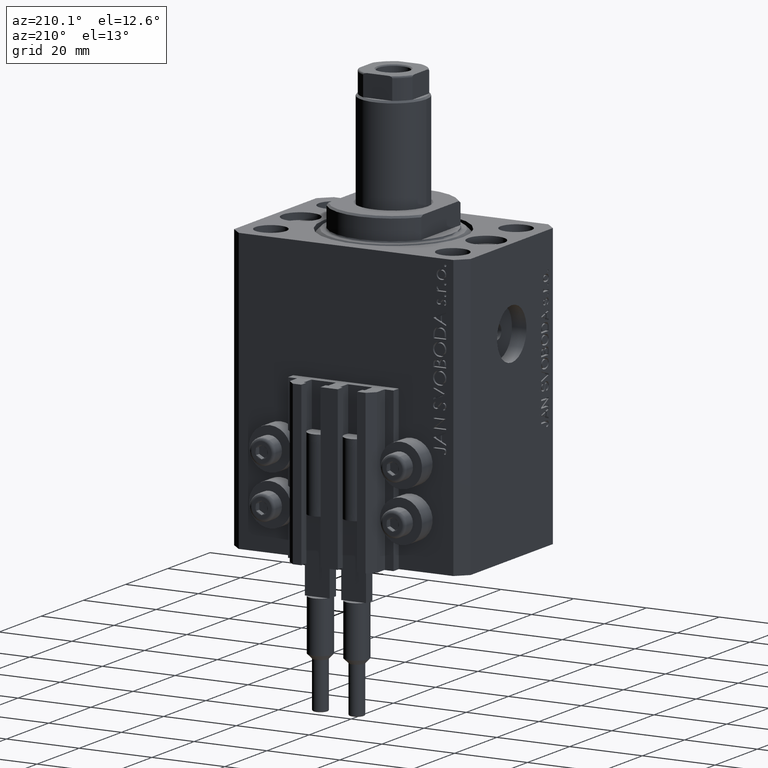
[diagram: clean part render]
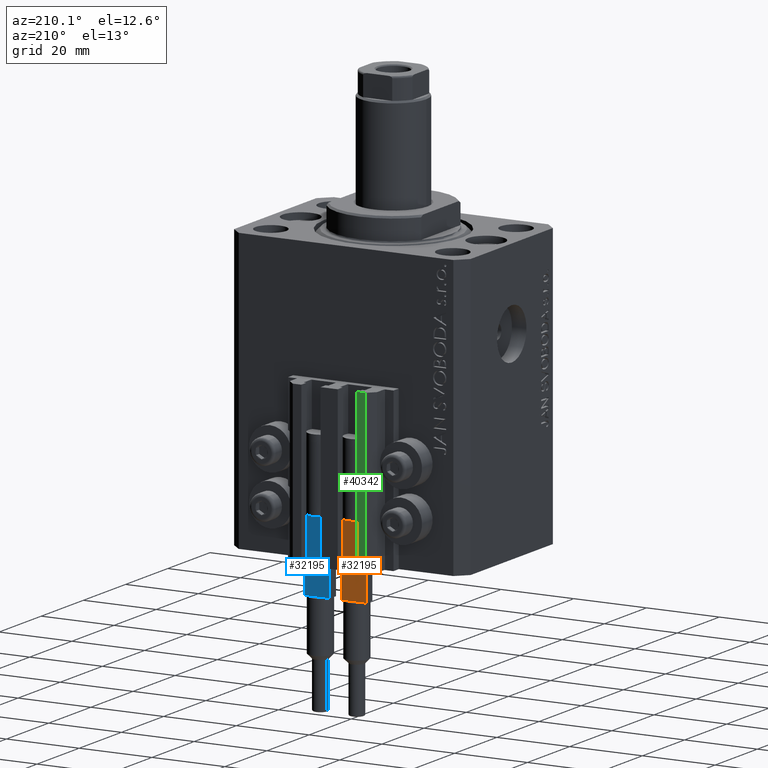
[diagram: same view with three faces highlighted in distinct colors, each labeled with its STEP entity id]
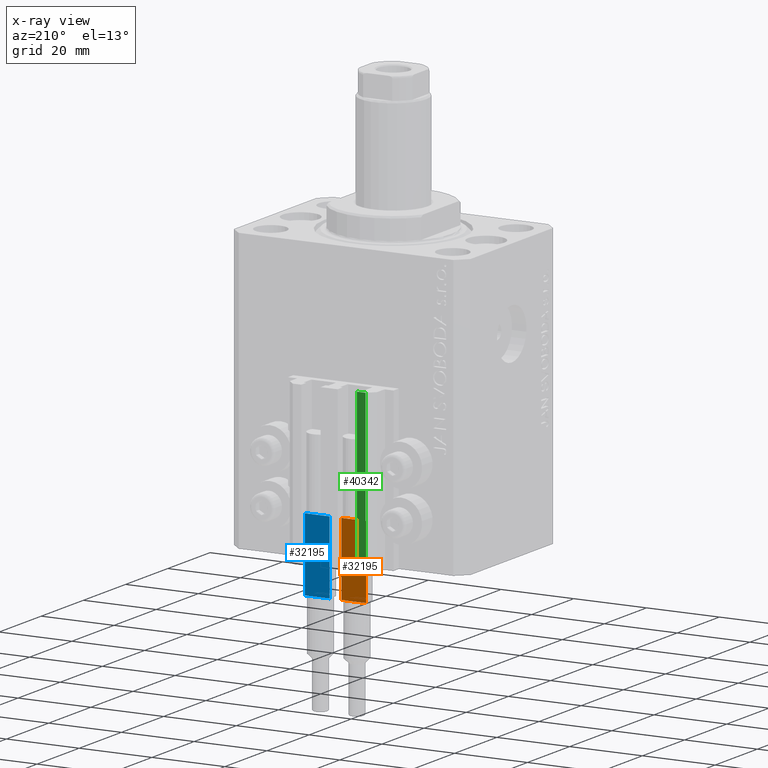
[diagram: x-ray of the same camera — body ghosted, the three highlighted faces saturated]
A machine part, auxiliary view with three faces highlighted in distinct colors.
The next image is the same camera in x-ray (body ghosted, the three faces saturated) — at least one of them is partly hidden behind the body in this view.
Their STEP definitions:

[orange] entity #32195 — the highlighted planar face has unit normal (0, -1, -0).
#1792 = DIRECTION ( 'NONE',  ( -0.000000000000000000, -0.000000000000000000, -1.000000000000000000 ) ) ;
#2443 = LINE ( 'NONE', #17226, #40698 ) ;
#2501 = FACE_OUTER_BOUND ( 'NONE', #45176, .T. ) ;
#5296 = ORIENTED_EDGE ( 'NONE', *, *, #25158, .F. ) ;
#5676 = DIRECTION ( 'NONE',  ( 0.000000000000000000, -0.000000000000000000, 1.000000000000000000 ) ) ;
#5892 = VERTEX_POINT ( 'NONE', #27690 ) ;
#7401 = AXIS2_PLACEMENT_3D ( 'NONE', #24801, #38623, #5676 ) ;
#7646 = CARTESIAN_POINT ( 'NONE',  ( 3.051229260478471428, -1.500000000000000000, 20.00000000000000000 ) ) ;
#7902 = ORIENTED_EDGE ( 'NONE', *, *, #14832, .F. ) ;
#10071 = VECTOR ( 'NONE', #43062, 1000.000000000000000 ) ;
#10503 = VERTEX_POINT ( 'NONE', #26639 ) ;
#11006 = VECTOR ( 'NONE', #39461, 1000.000000000000000 ) ;
#12671 = CARTESIAN_POINT ( 'NONE',  ( -2.883140648667699146, -1.500000000000000000, 40.00000000000000000 ) ) ;
#13522 = DIRECTION ( 'NONE',  ( 1.000000000000000000, 0.000000000000000000, 0.000000000000000000 ) ) ;
#14648 = VERTEX_POINT ( 'NONE', #12671 ) ;
#14832 = EDGE_CURVE ( 'NONE', #10503, #14648, #25385, .T. ) ;
#14858 = LINE ( 'NONE', #21433, #32774 ) ;
#14938 = EDGE_CURVE ( 'NONE', #35306, #20137, #25143, .T. ) ;
#15711 = ORIENTED_EDGE ( 'NONE', *, *, #46025, .F. ) ;
#17226 = CARTESIAN_POINT ( 'NONE',  ( -3.399999999999999467, -1.500000000000000000, 20.00000000000000000 ) ) ;
#17400 = CARTESIAN_POINT ( 'NONE',  ( -3.399999999999999467, -1.500000000000000000, 40.00000000000000000 ) ) ;
#17502 = ORIENTED_EDGE ( 'NONE', *, *, #33580, .T. ) ;
#17526 = CARTESIAN_POINT ( 'NONE',  ( 3.400000000000000355, -1.500000000000000000, 20.00000000000000000 ) ) ;
#19907 = ORIENTED_EDGE ( 'NONE', *, *, #44026, .T. ) ;
#20137 = VERTEX_POINT ( 'NONE', #7646 ) ;
#20450 = PLANE ( 'NONE',  #7401 ) ;
#21433 = CARTESIAN_POINT ( 'NONE',  ( 3.400000000000000355, -1.500000000000000000, 40.00000000000000000 ) ) ;
#22281 = VECTOR ( 'NONE', #35074, 1000.000000000000000 ) ;
#24681 = CARTESIAN_POINT ( 'NONE',  ( -3.399999999999999467, -1.500000000000000000, 20.00000000000000000 ) ) ;
#24801 = CARTESIAN_POINT ( 'NONE',  ( -3.399999999999999467, -1.500000000000000000, 40.00000000000000000 ) ) ;
#25143 = LINE ( 'NONE', #24681, #11006 ) ;
#25158 = EDGE_CURVE ( 'NONE', #5892, #32148, #14858, .T. ) ;
#25385 = LINE ( 'NONE', #17400, #28014 ) ;
#25751 = CARTESIAN_POINT ( 'NONE',  ( -3.399999999999999467, -1.500000000000000000, 20.00000000000000000 ) ) ;
#25962 = VERTEX_POINT ( 'NONE', #35071 ) ;
#26071 = CARTESIAN_POINT ( 'NONE',  ( -3.399999999999999467, -1.500000000000000000, 40.00000000000000000 ) ) ;
#26639 = CARTESIAN_POINT ( 'NONE',  ( -3.399999999999999467, -1.500000000000000000, 40.00000000000000000 ) ) ;
#26750 = VECTOR ( 'NONE', #1792, 1000.000000000000000 ) ;
#27074 = CARTESIAN_POINT ( 'NONE',  ( -3.051229260478471428, -1.500000000000000000, 20.00000000000000000 ) ) ;
#27088 = LINE ( 'NONE', #38956, #22281 ) ;
#27233 = ORIENTED_EDGE ( 'NONE', *, *, #32692, .T. ) ;
#27500 = CARTESIAN_POINT ( 'NONE',  ( -3.399999999999999467, -1.500000000000000000, 20.00000000000000000 ) ) ;
#27690 = CARTESIAN_POINT ( 'NONE',  ( 3.400000000000000355, -1.500000000000000000, 40.00000000000000000 ) ) ;
#28014 = VECTOR ( 'NONE', #13522, 1000.000000000000000 ) ;
#29397 = LINE ( 'NONE', #25751, #10071 ) ;
#29940 = DIRECTION ( 'NONE',  ( 1.000000000000000000, 0.000000000000000000, 0.000000000000000000 ) ) ;
#30984 = VECTOR ( 'NONE', #29940, 1000.000000000000000 ) ;
#31280 = DIRECTION ( 'NONE',  ( 1.000000000000000000, 0.000000000000000000, 0.000000000000000000 ) ) ;
#31348 = CARTESIAN_POINT ( 'NONE',  ( -3.399999999999999467, -1.500000000000000000, 40.00000000000000000 ) ) ;
#32148 = VERTEX_POINT ( 'NONE', #17526 ) ;
#32195 = ADVANCED_FACE ( 'NONE', ( #2501 ), #20450, .F. ) ;
#32308 = DIRECTION ( 'NONE',  ( -0.000000000000000000, -0.000000000000000000, -1.000000000000000000 ) ) ;
#32692 = EDGE_CURVE ( 'NONE', #20137, #32148, #2443, .T. ) ;
#32774 = VECTOR ( 'NONE', #32308, 1000.000000000000000 ) ;
#33580 = EDGE_CURVE ( 'NONE', #10503, #46058, #41554, .T. ) ;
#34522 = LINE ( 'NONE', #26071, #30984 ) ;
#35071 = CARTESIAN_POINT ( 'NONE',  ( 2.883140648667699146, -1.500000000000000000, 40.00000000000000000 ) ) ;
#35074 = DIRECTION ( 'NONE',  ( 1.000000000000000000, 0.000000000000000000, 0.000000000000000000 ) ) ;
#35306 = VERTEX_POINT ( 'NONE', #27074 ) ;
#38474 = EDGE_CURVE ( 'NONE', #25962, #5892, #27088, .T. ) ;
#38623 = DIRECTION ( 'NONE',  ( 0.000000000000000000, 1.000000000000000000, 0.000000000000000000 ) ) ;
#38956 = CARTESIAN_POINT ( 'NONE',  ( -3.399999999999999467, -1.500000000000000000, 40.00000000000000000 ) ) ;
#39461 = DIRECTION ( 'NONE',  ( 1.000000000000000000, 0.000000000000000000, 0.000000000000000000 ) ) ;
#40582 = ORIENTED_EDGE ( 'NONE', *, *, #14938, .T. ) ;
#40698 = VECTOR ( 'NONE', #31280, 1000.000000000000000 ) ;
#41554 = LINE ( 'NONE', #31348, #26750 ) ;
#43062 = DIRECTION ( 'NONE',  ( 1.000000000000000000, 0.000000000000000000, 0.000000000000000000 ) ) ;
#44026 = EDGE_CURVE ( 'NONE', #46058, #35306, #29397, .T. ) ;
#45176 = EDGE_LOOP ( 'NONE', ( #19907, #40582, #27233, #5296, #45835, #15711, #7902, #17502 ) ) ;
#45835 = ORIENTED_EDGE ( 'NONE', *, *, #38474, .F. ) ;
#46025 = EDGE_CURVE ( 'NONE', #14648, #25962, #34522, .T. ) ;
#46058 = VERTEX_POINT ( 'NONE', #27500 ) ;

[blue] entity #32195 — the highlighted planar face has unit normal (0, -1, -0).
#1792 = DIRECTION ( 'NONE',  ( -0.000000000000000000, -0.000000000000000000, -1.000000000000000000 ) ) ;
#2443 = LINE ( 'NONE', #17226, #40698 ) ;
#2501 = FACE_OUTER_BOUND ( 'NONE', #45176, .T. ) ;
#5296 = ORIENTED_EDGE ( 'NONE', *, *, #25158, .F. ) ;
#5676 = DIRECTION ( 'NONE',  ( 0.000000000000000000, -0.000000000000000000, 1.000000000000000000 ) ) ;
#5892 = VERTEX_POINT ( 'NONE', #27690 ) ;
#7401 = AXIS2_PLACEMENT_3D ( 'NONE', #24801, #38623, #5676 ) ;
#7646 = CARTESIAN_POINT ( 'NONE',  ( 3.051229260478471428, -1.500000000000000000, 20.00000000000000000 ) ) ;
#7902 = ORIENTED_EDGE ( 'NONE', *, *, #14832, .F. ) ;
#10071 = VECTOR ( 'NONE', #43062, 1000.000000000000000 ) ;
#10503 = VERTEX_POINT ( 'NONE', #26639 ) ;
#11006 = VECTOR ( 'NONE', #39461, 1000.000000000000000 ) ;
#12671 = CARTESIAN_POINT ( 'NONE',  ( -2.883140648667699146, -1.500000000000000000, 40.00000000000000000 ) ) ;
#13522 = DIRECTION ( 'NONE',  ( 1.000000000000000000, 0.000000000000000000, 0.000000000000000000 ) ) ;
#14648 = VERTEX_POINT ( 'NONE', #12671 ) ;
#14832 = EDGE_CURVE ( 'NONE', #10503, #14648, #25385, .T. ) ;
#14858 = LINE ( 'NONE', #21433, #32774 ) ;
#14938 = EDGE_CURVE ( 'NONE', #35306, #20137, #25143, .T. ) ;
#15711 = ORIENTED_EDGE ( 'NONE', *, *, #46025, .F. ) ;
#17226 = CARTESIAN_POINT ( 'NONE',  ( -3.399999999999999467, -1.500000000000000000, 20.00000000000000000 ) ) ;
#17400 = CARTESIAN_POINT ( 'NONE',  ( -3.399999999999999467, -1.500000000000000000, 40.00000000000000000 ) ) ;
#17502 = ORIENTED_EDGE ( 'NONE', *, *, #33580, .T. ) ;
#17526 = CARTESIAN_POINT ( 'NONE',  ( 3.400000000000000355, -1.500000000000000000, 20.00000000000000000 ) ) ;
#19907 = ORIENTED_EDGE ( 'NONE', *, *, #44026, .T. ) ;
#20137 = VERTEX_POINT ( 'NONE', #7646 ) ;
#20450 = PLANE ( 'NONE',  #7401 ) ;
#21433 = CARTESIAN_POINT ( 'NONE',  ( 3.400000000000000355, -1.500000000000000000, 40.00000000000000000 ) ) ;
#22281 = VECTOR ( 'NONE', #35074, 1000.000000000000000 ) ;
#24681 = CARTESIAN_POINT ( 'NONE',  ( -3.399999999999999467, -1.500000000000000000, 20.00000000000000000 ) ) ;
#24801 = CARTESIAN_POINT ( 'NONE',  ( -3.399999999999999467, -1.500000000000000000, 40.00000000000000000 ) ) ;
#25143 = LINE ( 'NONE', #24681, #11006 ) ;
#25158 = EDGE_CURVE ( 'NONE', #5892, #32148, #14858, .T. ) ;
#25385 = LINE ( 'NONE', #17400, #28014 ) ;
#25751 = CARTESIAN_POINT ( 'NONE',  ( -3.399999999999999467, -1.500000000000000000, 20.00000000000000000 ) ) ;
#25962 = VERTEX_POINT ( 'NONE', #35071 ) ;
#26071 = CARTESIAN_POINT ( 'NONE',  ( -3.399999999999999467, -1.500000000000000000, 40.00000000000000000 ) ) ;
#26639 = CARTESIAN_POINT ( 'NONE',  ( -3.399999999999999467, -1.500000000000000000, 40.00000000000000000 ) ) ;
#26750 = VECTOR ( 'NONE', #1792, 1000.000000000000000 ) ;
#27074 = CARTESIAN_POINT ( 'NONE',  ( -3.051229260478471428, -1.500000000000000000, 20.00000000000000000 ) ) ;
#27088 = LINE ( 'NONE', #38956, #22281 ) ;
#27233 = ORIENTED_EDGE ( 'NONE', *, *, #32692, .T. ) ;
#27500 = CARTESIAN_POINT ( 'NONE',  ( -3.399999999999999467, -1.500000000000000000, 20.00000000000000000 ) ) ;
#27690 = CARTESIAN_POINT ( 'NONE',  ( 3.400000000000000355, -1.500000000000000000, 40.00000000000000000 ) ) ;
#28014 = VECTOR ( 'NONE', #13522, 1000.000000000000000 ) ;
#29397 = LINE ( 'NONE', #25751, #10071 ) ;
#29940 = DIRECTION ( 'NONE',  ( 1.000000000000000000, 0.000000000000000000, 0.000000000000000000 ) ) ;
#30984 = VECTOR ( 'NONE', #29940, 1000.000000000000000 ) ;
#31280 = DIRECTION ( 'NONE',  ( 1.000000000000000000, 0.000000000000000000, 0.000000000000000000 ) ) ;
#31348 = CARTESIAN_POINT ( 'NONE',  ( -3.399999999999999467, -1.500000000000000000, 40.00000000000000000 ) ) ;
#32148 = VERTEX_POINT ( 'NONE', #17526 ) ;
#32195 = ADVANCED_FACE ( 'NONE', ( #2501 ), #20450, .F. ) ;
#32308 = DIRECTION ( 'NONE',  ( -0.000000000000000000, -0.000000000000000000, -1.000000000000000000 ) ) ;
#32692 = EDGE_CURVE ( 'NONE', #20137, #32148, #2443, .T. ) ;
#32774 = VECTOR ( 'NONE', #32308, 1000.000000000000000 ) ;
#33580 = EDGE_CURVE ( 'NONE', #10503, #46058, #41554, .T. ) ;
#34522 = LINE ( 'NONE', #26071, #30984 ) ;
#35071 = CARTESIAN_POINT ( 'NONE',  ( 2.883140648667699146, -1.500000000000000000, 40.00000000000000000 ) ) ;
#35074 = DIRECTION ( 'NONE',  ( 1.000000000000000000, 0.000000000000000000, 0.000000000000000000 ) ) ;
#35306 = VERTEX_POINT ( 'NONE', #27074 ) ;
#38474 = EDGE_CURVE ( 'NONE', #25962, #5892, #27088, .T. ) ;
#38623 = DIRECTION ( 'NONE',  ( 0.000000000000000000, 1.000000000000000000, 0.000000000000000000 ) ) ;
#38956 = CARTESIAN_POINT ( 'NONE',  ( -3.399999999999999467, -1.500000000000000000, 40.00000000000000000 ) ) ;
#39461 = DIRECTION ( 'NONE',  ( 1.000000000000000000, 0.000000000000000000, 0.000000000000000000 ) ) ;
#40582 = ORIENTED_EDGE ( 'NONE', *, *, #14938, .T. ) ;
#40698 = VECTOR ( 'NONE', #31280, 1000.000000000000000 ) ;
#41554 = LINE ( 'NONE', #31348, #26750 ) ;
#43062 = DIRECTION ( 'NONE',  ( 1.000000000000000000, 0.000000000000000000, 0.000000000000000000 ) ) ;
#44026 = EDGE_CURVE ( 'NONE', #46058, #35306, #29397, .T. ) ;
#45176 = EDGE_LOOP ( 'NONE', ( #19907, #40582, #27233, #5296, #45835, #15711, #7902, #17502 ) ) ;
#45835 = ORIENTED_EDGE ( 'NONE', *, *, #38474, .F. ) ;
#46025 = EDGE_CURVE ( 'NONE', #14648, #25962, #34522, .T. ) ;
#46058 = VERTEX_POINT ( 'NONE', #27500 ) ;

[green] entity #40342 — the highlighted planar face has unit normal (0, 1, 0).
#1831 = VERTEX_POINT ( 'NONE', #24285 ) ;
#2731 = VECTOR ( 'NONE', #9202, 1000.000000000000000 ) ;
#3314 = ORIENTED_EDGE ( 'NONE', *, *, #43411, .F. ) ;
#3323 = PLANE ( 'NONE',  #20035 ) ;
#7145 = EDGE_LOOP ( 'NONE', ( #3314, #43830, #26808, #33439 ) ) ;
#9202 = DIRECTION ( 'NONE',  ( 0.000000000000000000, 0.000000000000000000, 1.000000000000000000 ) ) ;
#9338 = CARTESIAN_POINT ( 'NONE',  ( -7.650000000000000355, 30.49999999999948486, -33.00000000000000000 ) ) ;
#9676 = CARTESIAN_POINT ( 'NONE',  ( -7.650000000000000355, 30.49999999999948486, -77.00000000000000000 ) ) ;
#10127 = DIRECTION ( 'NONE',  ( 1.476360405086644852E-15, 1.000000000000000000, -0.000000000000000000 ) ) ;
#12507 = EDGE_CURVE ( 'NONE', #32067, #16645, #24221, .T. ) ;
#12567 = EDGE_CURVE ( 'NONE', #31870, #1831, #16954, .T. ) ;
#13921 = DIRECTION ( 'NONE',  ( -1.000000000000000000, 1.476360405086644852E-15, 0.000000000000000000 ) ) ;
#16093 = CARTESIAN_POINT ( 'NONE',  ( -10.00000000000000000, 30.49999999999948841, -77.00000000000000000 ) ) ;
#16645 = VERTEX_POINT ( 'NONE', #45130 ) ;
#16954 = LINE ( 'NONE', #27363, #39894 ) ;
#20035 = AXIS2_PLACEMENT_3D ( 'NONE', #29010, #10127, #40182 ) ;
#24221 = LINE ( 'NONE', #42415, #2731 ) ;
#24285 = CARTESIAN_POINT ( 'NONE',  ( -7.650000000000000355, 30.49999999999948486, -33.00000000000000000 ) ) ;
#24381 = CARTESIAN_POINT ( 'NONE',  ( -7.650000000000000355, 30.49999999999948486, -77.00000000000000000 ) ) ;
#24736 = VECTOR ( 'NONE', #13921, 1000.000000000000000 ) ;
#26043 = VECTOR ( 'NONE', #31717, 1000.000000000000000 ) ;
#26808 = ORIENTED_EDGE ( 'NONE', *, *, #35161, .T. ) ;
#27363 = CARTESIAN_POINT ( 'NONE',  ( -7.650000000000000355, 30.49999999999948486, -77.00000000000000000 ) ) ;
#27607 = LINE ( 'NONE', #9676, #26043 ) ;
#29010 = CARTESIAN_POINT ( 'NONE',  ( -7.650000000000000355, 30.49999999999948486, -77.00000000000000000 ) ) ;
#31717 = DIRECTION ( 'NONE',  ( -1.000000000000000000, 1.476360405086644852E-15, 0.000000000000000000 ) ) ;
#31870 = VERTEX_POINT ( 'NONE', #24381 ) ;
#32067 = VERTEX_POINT ( 'NONE', #16093 ) ;
#33439 = ORIENTED_EDGE ( 'NONE', *, *, #12507, .T. ) ;
#35161 = EDGE_CURVE ( 'NONE', #31870, #32067, #27607, .T. ) ;
#35354 = DIRECTION ( 'NONE',  ( 0.000000000000000000, 0.000000000000000000, 1.000000000000000000 ) ) ;
#39894 = VECTOR ( 'NONE', #35354, 1000.000000000000000 ) ;
#40182 = DIRECTION ( 'NONE',  ( -1.000000000000000000, 1.476360405086644852E-15, 0.000000000000000000 ) ) ;
#40342 = ADVANCED_FACE ( 'NONE', ( #43107 ), #3323, .T. ) ;
#42415 = CARTESIAN_POINT ( 'NONE',  ( -10.00000000000000000, 30.49999999999948841, -77.00000000000000000 ) ) ;
#43032 = LINE ( 'NONE', #9338, #24736 ) ;
#43107 = FACE_OUTER_BOUND ( 'NONE', #7145, .T. ) ;
#43411 = EDGE_CURVE ( 'NONE', #1831, #16645, #43032, .T. ) ;
#43830 = ORIENTED_EDGE ( 'NONE', *, *, #12567, .F. ) ;
#45130 = CARTESIAN_POINT ( 'NONE',  ( -10.00000000000000000, 30.49999999999948841, -33.00000000000000000 ) ) ;